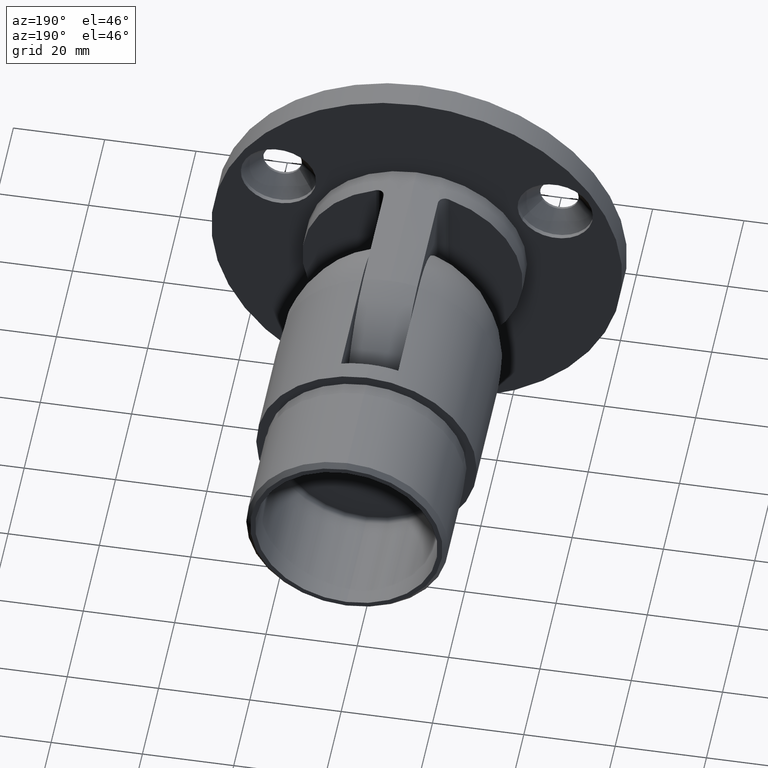
[diagram: clean part render]
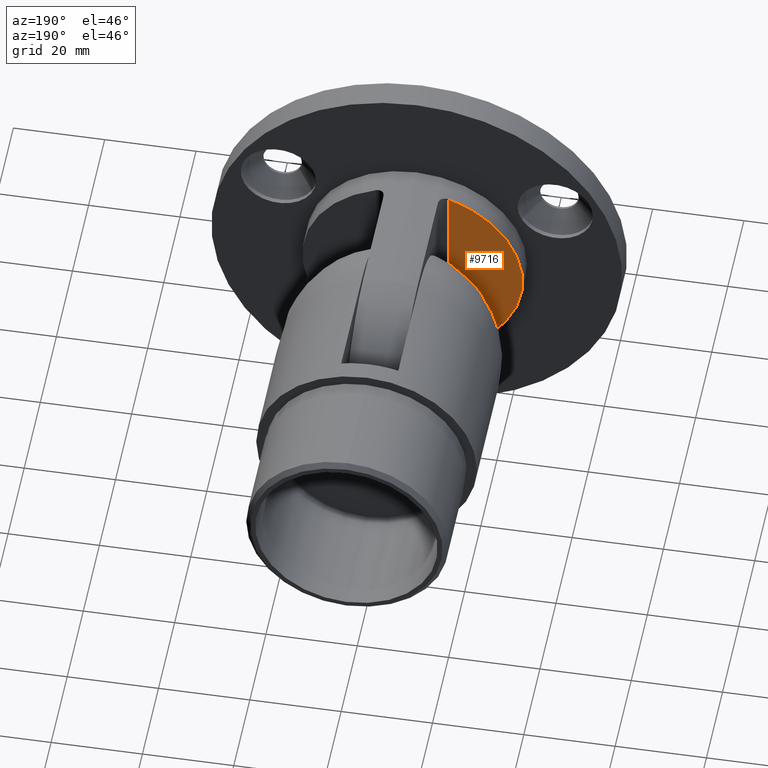
[diagram: same view with one face highlighted and labeled with its STEP entity id]
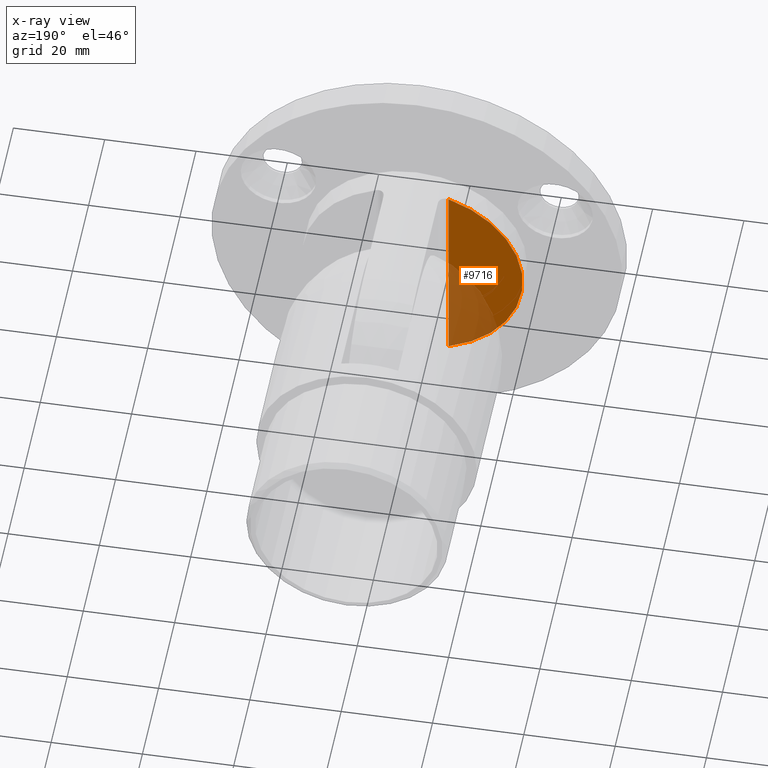
[diagram: x-ray of the same camera — body ghosted, the highlighted face saturated]
A machine part, auxiliary view. The second image highlights one B-rep face of the part: STEP entity #9716.
The next image is the same camera in x-ray: the body ghosted, the highlighted face saturated — about 32% of this face is hidden behind the body in this view.
In plain terms, the highlighted planar face has unit normal (0, 1, 0).
Its self-contained STEP definition (entity closure, byte-faithful):
#265 = PLANE ( 'NONE',  #18771 ) ;
#1640 = ORIENTED_EDGE ( 'NONE', *, *, #16527, .T. ) ;
#1893 = DIRECTION ( 'NONE',  ( -0.000000000000000000, 0.000000000000000000, -1.000000000000000000 ) ) ;
#2819 = EDGE_CURVE ( 'NONE', #5015, #15275, #24584, .T. ) ;
#3124 = DIRECTION ( 'NONE',  ( 0.000000000000000000, 0.000000000000000000, 1.000000000000000000 ) ) ;
#3375 = DIRECTION ( 'NONE',  ( 0.000000000000000000, 1.000000000000000000, 0.000000000000000000 ) ) ;
#4263 = CARTESIAN_POINT ( 'NONE',  ( -7.949999999999994849, 11.50000000000000000, -22.80394702677586949 ) ) ;
#5015 = VERTEX_POINT ( 'NONE', #12297 ) ;
#6505 = EDGE_LOOP ( 'NONE', ( #1640, #7096 ) ) ;
#7096 = ORIENTED_EDGE ( 'NONE', *, *, #2819, .T. ) ;
#7560 = FACE_OUTER_BOUND ( 'NONE', #6505, .T. ) ;
#9716 = ADVANCED_FACE ( 'NONE', ( #7560 ), #265, .T. ) ;
#9763 = CARTESIAN_POINT ( 'NONE',  ( 0.000000000000000000, 11.50000000000000000, 0.000000000000000000 ) ) ;
#11725 = DIRECTION ( 'NONE',  ( 0.000000000000000000, 1.000000000000000000, 0.000000000000000000 ) ) ;
#12297 = CARTESIAN_POINT ( 'NONE',  ( -7.949999999999994849, 11.50000000000000000, 22.80394702677586949 ) ) ;
#12428 = AXIS2_PLACEMENT_3D ( 'NONE', #22477, #3375, #3124 ) ;
#13357 = CARTESIAN_POINT ( 'NONE',  ( -7.949999999999994849, 11.50000000000000000, 0.000000000000000000 ) ) ;
#13658 = DIRECTION ( 'NONE',  ( 0.000000000000000000, -0.000000000000000000, 1.000000000000000000 ) ) ;
#15275 = VERTEX_POINT ( 'NONE', #4263 ) ;
#16527 = EDGE_CURVE ( 'NONE', #15275, #5015, #23392, .T. ) ;
#18771 = AXIS2_PLACEMENT_3D ( 'NONE', #9763, #11725, #13658 ) ;
#22477 = CARTESIAN_POINT ( 'NONE',  ( 0.000000000000000000, 11.50000000000000000, 0.000000000000000000 ) ) ;
#23392 = CIRCLE ( 'NONE', #12428, 24.14999999999999858 ) ;
#24004 = VECTOR ( 'NONE', #1893, 1000.000000000000000 ) ;
#24584 = LINE ( 'NONE', #13357, #24004 ) ;